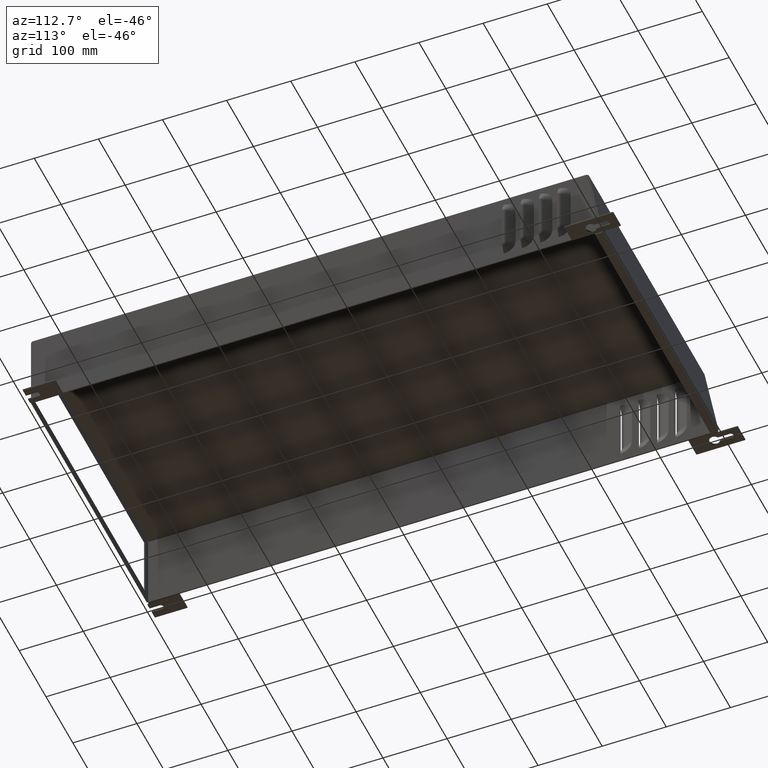
[diagram: clean part render]
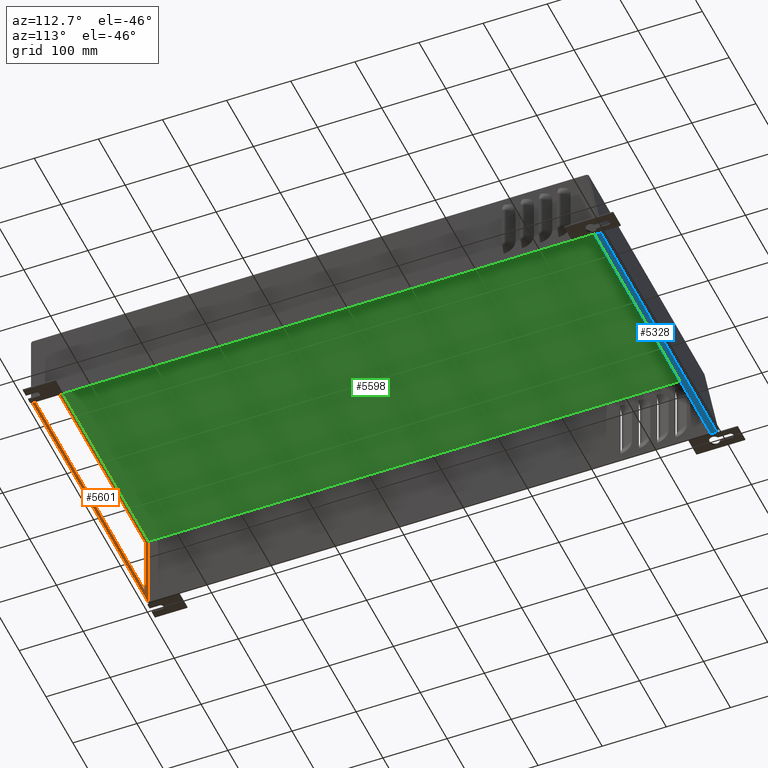
[diagram: same view with three faces highlighted in distinct colors, each labeled with its STEP entity id]
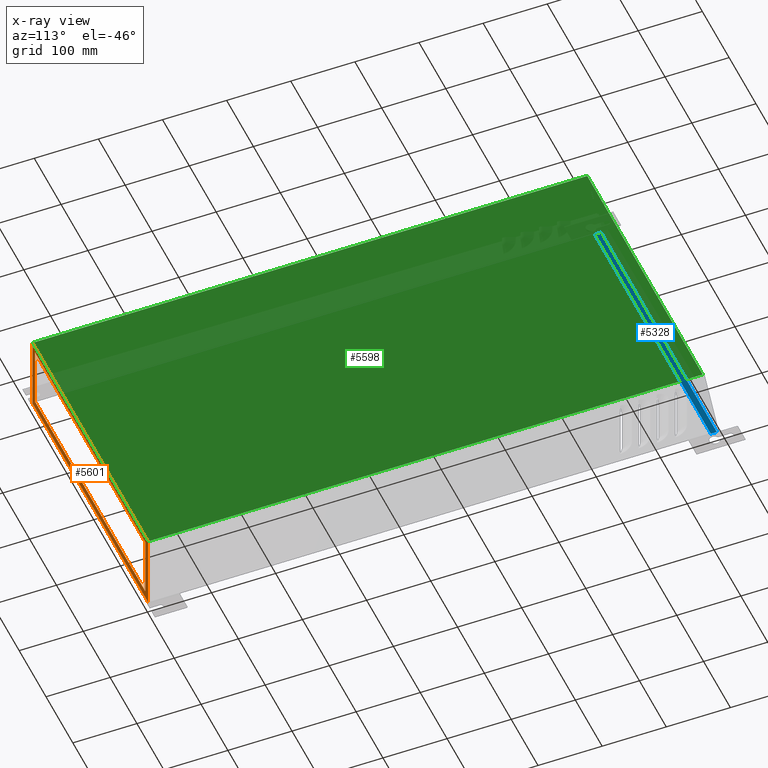
[diagram: x-ray of the same camera — body ghosted, the three highlighted faces saturated]
A machine part, auxiliary view with three faces highlighted in distinct colors.
The next image is the same camera in x-ray (body ghosted, the three faces saturated) — at least one of them is partly hidden behind the body in this view.
Their STEP definitions:

[orange] entity #5601 — the highlighted planar face has unit normal (-0, -1, 0).
#71=FACE_BOUND('',#946,.T.);
#308=PLANE('',#6161);
#614=FACE_OUTER_BOUND('',#945,.T.);
#945=EDGE_LOOP('',(#4879,#4880,#4881,#4882));
#946=EDGE_LOOP('',(#4883,#4884,#4885,#4886));
#1600=LINE('',#9266,#2058);
#1604=LINE('',#9274,#2062);
#1607=LINE('',#9280,#2065);
#1610=LINE('',#9285,#2068);
#1692=LINE('',#9841,#2150);
#1693=LINE('',#9843,#2151);
#1694=LINE('',#9845,#2152);
#1695=LINE('',#9846,#2153);
#2058=VECTOR('',#7504,4.);
#2062=VECTOR('',#7510,16.1562499999999);
#2065=VECTOR('',#7515,4.);
#2068=VECTOR('',#7520,16.1562499999999);
#2150=VECTOR('',#7710,17.0068357864376);
#2151=VECTOR('',#7711,4.89475);
#2152=VECTOR('',#7712,17.0068357864376);
#2153=VECTOR('',#7713,4.89475);
#2558=VERTEX_POINT('',#9264);
#2559=VERTEX_POINT('',#9265);
#2562=VERTEX_POINT('',#9273);
#2564=VERTEX_POINT('',#9279);
#2615=VERTEX_POINT('',#9742);
#2619=VERTEX_POINT('',#9840);
#2620=VERTEX_POINT('',#9842);
#2621=VERTEX_POINT('',#9844);
#3257=EDGE_CURVE('',#2558,#2559,#1600,.T.);
#3261=EDGE_CURVE('',#2559,#2562,#1604,.T.);
#3264=EDGE_CURVE('',#2562,#2564,#1607,.T.);
#3267=EDGE_CURVE('',#2564,#2558,#1610,.T.);
#3380=EDGE_CURVE('',#2619,#2615,#1692,.T.);
#3381=EDGE_CURVE('',#2615,#2620,#1693,.T.);
#3382=EDGE_CURVE('',#2620,#2621,#1694,.T.);
#3383=EDGE_CURVE('',#2619,#2621,#1695,.T.);
#4879=ORIENTED_EDGE('',*,*,#3380,.T.);
#4880=ORIENTED_EDGE('',*,*,#3381,.T.);
#4881=ORIENTED_EDGE('',*,*,#3382,.T.);
#4882=ORIENTED_EDGE('',*,*,#3383,.F.);
#4883=ORIENTED_EDGE('',*,*,#3257,.T.);
#4884=ORIENTED_EDGE('',*,*,#3261,.T.);
#4885=ORIENTED_EDGE('',*,*,#3264,.T.);
#4886=ORIENTED_EDGE('',*,*,#3267,.T.);
#5601=ADVANCED_FACE('',(#614,#71),#308,.F.);
#6161=AXIS2_PLACEMENT_3D('',#9839,#7708,#7709);
#7504=DIRECTION('',(1.7548080099339E-16,-6.04766770038424E-17,-1.));
#7510=DIRECTION('',(1.,-1.84305754711411E-19,1.30503063813371E-16));
#7515=DIRECTION('',(-6.42529398876849E-19,6.04766770038424E-17,1.));
#7520=DIRECTION('',(-1.,1.84305754711419E-19,-6.42529398876849E-19));
#7708=DIRECTION('center_axis',(-1.84305754711419E-19,-1.,6.04766770038424E-17));
#7709=DIRECTION('ref_axis',(1.,0.,0.));
#7710=DIRECTION('',(1.,-1.84305754711419E-19,1.12854726285888E-35));
#7711=DIRECTION('',(0.,-6.12323399573677E-17,-1.));
#7712=DIRECTION('',(-1.,0.,0.));
#7713=DIRECTION('',(0.,-6.12323399573677E-17,-1.));
#9264=CARTESIAN_POINT('',(0.499999999999989,0.0739999999999987,-0.426));
#9265=CARTESIAN_POINT('',(0.49999999999999,0.0739999999999985,-4.426));
#9266=CARTESIAN_POINT('',(0.499999999999989,0.0739999999999987,-1.43218098579218));
#9273=CARTESIAN_POINT('',(16.6562499999999,0.0739999999999985,-4.426));
#9274=CARTESIAN_POINT('',(4.53906249999999,0.0739999999999985,-4.426));
#9279=CARTESIAN_POINT('',(16.6562499999999,0.0739999999999987,-0.426));
#9280=CARTESIAN_POINT('',(16.6562499999999,0.0739999999999985,-3.43218098579217));
#9285=CARTESIAN_POINT('',(12.6171874999999,0.0739999999999987,-0.426));
#9742=CARTESIAN_POINT('',(17.0815428932188,0.0739999999999987,-0.0312499999999999));
#9839=CARTESIAN_POINT('Origin',(8.57812499999999,0.0739999999999986,-2.43836197158435));
#9840=CARTESIAN_POINT('',(0.0747071067811836,0.0739999999999987,-0.0312499999999999));
#9841=CARTESIAN_POINT('',(8.57812499999999,0.0739999999999987,-0.0312499999999997));
#9842=CARTESIAN_POINT('',(17.0815428932188,0.0739999999999984,-4.926));
#9843=CARTESIAN_POINT('',(17.0815428932188,0.0739999999999987,-0.0312499999999999));
#9844=CARTESIAN_POINT('',(0.0747071067811843,0.0739999999999984,-4.926));
#9845=CARTESIAN_POINT('',(17.0815428932188,0.0739999999999984,-4.926));
#9846=CARTESIAN_POINT('',(0.0747071067811843,0.0739999999999987,-0.0312499999999999));

[blue] entity #5328 — the highlighted planar face has unit normal (0, 0, -1).
#188=PLANE('',#5657);
#341=FACE_OUTER_BOUND('',#652,.T.);
#652=EDGE_LOOP('',(#3514,#3515,#3516,#3517));
#1303=LINE('',#7879,#1761);
#1308=LINE('',#7892,#1766);
#1315=LINE('',#7910,#1773);
#1317=LINE('',#7913,#1775);
#1761=VECTOR('',#6291,17.0068357864377);
#1766=VECTOR('',#6302,0.374567934379459);
#1773=VECTOR('',#6321,0.374567934379461);
#1775=VECTOR('',#6325,17.0068357864377);
#2214=VERTEX_POINT('',#7877);
#2215=VERTEX_POINT('',#7878);
#2220=VERTEX_POINT('',#7890);
#2225=VERTEX_POINT('',#7909);
#2692=EDGE_CURVE('',#2214,#2215,#1303,.T.);
#2699=EDGE_CURVE('',#2220,#2215,#1308,.T.);
#2708=EDGE_CURVE('',#2214,#2225,#1315,.T.);
#2710=EDGE_CURVE('',#2225,#2220,#1317,.T.);
#3514=ORIENTED_EDGE('',*,*,#2692,.T.);
#3515=ORIENTED_EDGE('',*,*,#2699,.F.);
#3516=ORIENTED_EDGE('',*,*,#2710,.F.);
#3517=ORIENTED_EDGE('',*,*,#2708,.F.);
#5328=ADVANCED_FACE('',(#341),#188,.T.);
#5657=AXIS2_PLACEMENT_3D('',#7914,#6326,#6327);
#6291=DIRECTION('',(1.,-2.39375973209086E-19,1.4290561586728E-17));
#6302=DIRECTION('',(2.39375973208922E-19,1.,1.20354490163253E-14));
#6321=DIRECTION('',(-2.39375973208922E-19,-1.,-1.1518563880486E-14));
#6325=DIRECTION('',(1.,-2.39375973208919E-19,-2.85277176052476E-19));
#6326=DIRECTION('center_axis',(1.4290561586728E-17,1.70141678523805E-14,
-1.));
#6327=DIRECTION('ref_axis',(0.,1.,1.80477854883064E-14));
#7877=CARTESIAN_POINT('',(0.0747071067811745,34.9932430296962,-4.9999546025338));
#7878=CARTESIAN_POINT('',(17.0815428932188,34.9932430296962,-4.9999546025338));
#7879=CARTESIAN_POINT('',(8.578125,34.9932430296962,-4.99995460253379));
#7890=CARTESIAN_POINT('',(17.0815428932188,34.6186750953168,-4.9999546025338));
#7892=CARTESIAN_POINT('',(17.0815428932188,35.1658107141579,-4.99995460253379));
#7909=CARTESIAN_POINT('',(0.0747071067811745,34.6186750953168,-4.9999546025338));
#7910=CARTESIAN_POINT('',(0.0747071067811745,34.9932430296962,-4.9999546025338));
#7913=CARTESIAN_POINT('',(0.0747071067811745,34.6186750953168,-4.9999546025338));
#7914=CARTESIAN_POINT('Origin',(8.578125,34.8538945304125,-4.99995460253379));

[green] entity #5598 — the highlighted planar face has unit normal (0, 0, 1).
#306=PLANE('',#6158);
#611=FACE_OUTER_BOUND('',#942,.T.);
#942=EDGE_LOOP('',(#4865,#4866,#4867,#4868));
#1677=LINE('',#9457,#2135);
#1683=LINE('',#9654,#2141);
#1687=LINE('',#9791,#2145);
#1689=LINE('',#9822,#2147);
#2135=VECTOR('',#7675,34.0304347638186);
#2141=VECTOR('',#7687,34.0304347638186);
#2145=VECTOR('',#7695,16.94575);
#2147=VECTOR('',#7701,16.94575);
#2606=VERTEX_POINT('',#9450);
#2607=VERTEX_POINT('',#9456);
#2610=VERTEX_POINT('',#9598);
#2612=VERTEX_POINT('',#9646);
#3345=EDGE_CURVE('',#2607,#2606,#1677,.T.);
#3361=EDGE_CURVE('',#2610,#2612,#1683,.T.);
#3372=EDGE_CURVE('',#2606,#2610,#1687,.T.);
#3375=EDGE_CURVE('',#2612,#2607,#1689,.T.);
#4865=ORIENTED_EDGE('',*,*,#3372,.T.);
#4866=ORIENTED_EDGE('',*,*,#3361,.T.);
#4867=ORIENTED_EDGE('',*,*,#3375,.T.);
#4868=ORIENTED_EDGE('',*,*,#3345,.T.);
#5598=ADVANCED_FACE('',(#611),#306,.F.);
#6158=AXIS2_PLACEMENT_3D('',#9821,#7699,#7700);
#7675=DIRECTION('',(-3.00418206183647E-16,1.,0.));
#7687=DIRECTION('',(0.,-1.,0.));
#7695=DIRECTION('',(1.,0.,0.));
#7699=DIRECTION('center_axis',(0.,0.,1.));
#7700=DIRECTION('ref_axis',(1.,0.,0.));
#7701=DIRECTION('',(-1.,0.,0.));
#9450=CARTESIAN_POINT('',(0.105249999999988,34.1356847638186,0.));
#9456=CARTESIAN_POINT('',(0.105249999999998,0.105249999999998,0.));
#9457=CARTESIAN_POINT('',(0.10524999999999,25.668,0.));
#9598=CARTESIAN_POINT('',(17.051,34.1356847638186,0.));
#9646=CARTESIAN_POINT('',(17.051,0.105249999999998,0.));
#9654=CARTESIAN_POINT('',(17.051,8.608625,0.));
#9791=CARTESIAN_POINT('',(12.8145625,34.1356847638186,0.));
#9821=CARTESIAN_POINT('Origin',(8.57812499999999,17.112,0.));
#9822=CARTESIAN_POINT('',(4.34168749999999,0.105249999999998,0.));